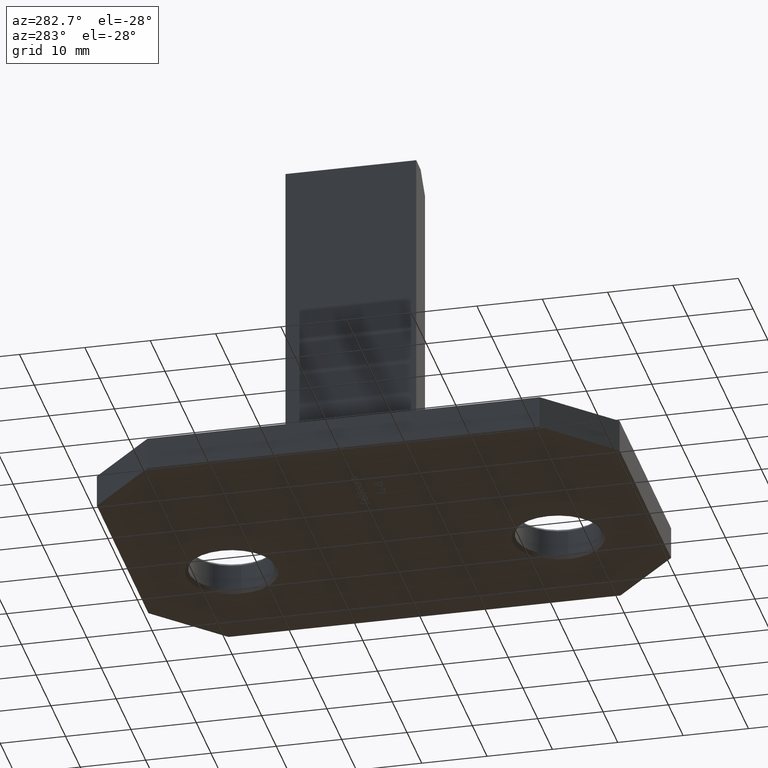
[diagram: clean part render]
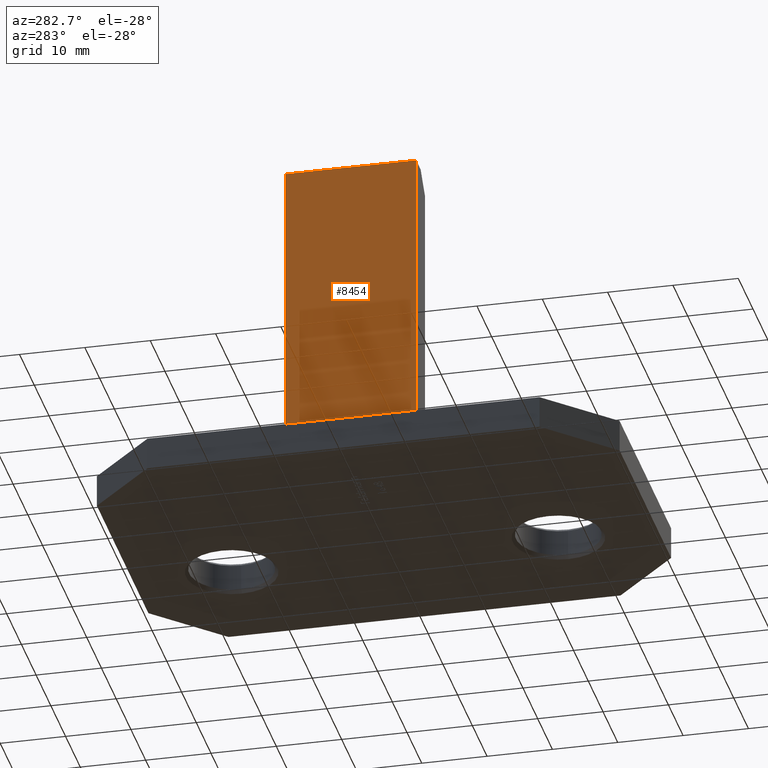
[diagram: same view with one face highlighted and labeled with its STEP entity id]
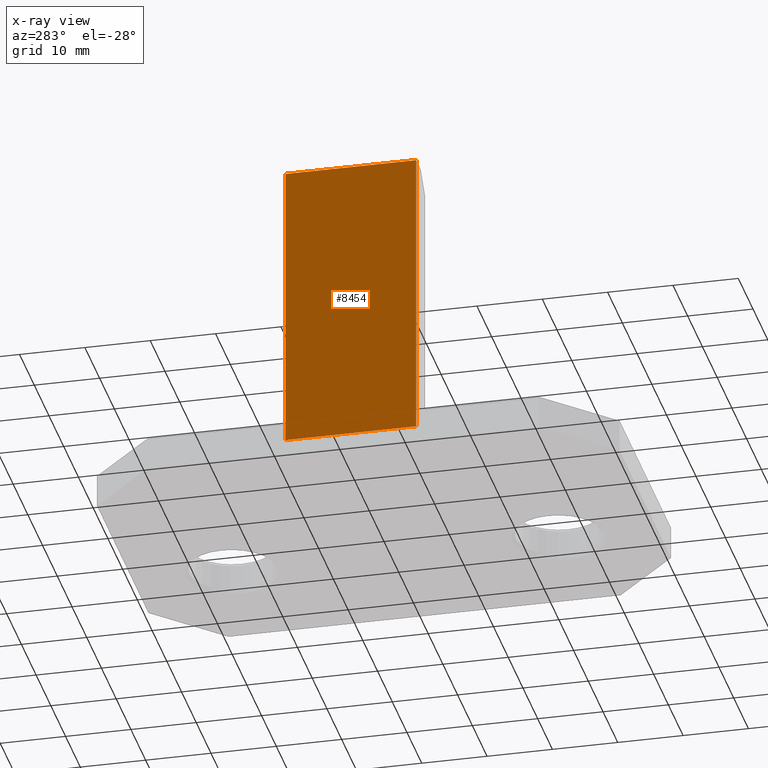
[diagram: x-ray of the same camera — body ghosted, the highlighted face saturated]
A machine part, auxiliary view. The second image highlights one B-rep face of the part: STEP entity #8454.
The next image is the same camera in x-ray: the body ghosted, the highlighted face saturated — about 0% of this face is hidden behind the body in this view.
In plain terms, the highlighted planar face has unit normal (1, 0, -0).
Its self-contained STEP definition (entity closure, byte-faithful):
#239 = VECTOR ( 'NONE', #6320, 1000.000000000000000 ) ;
#604 = EDGE_CURVE ( 'NONE', #8017, #5444, #8525, .T. ) ;
#799 = VERTEX_POINT ( 'NONE', #8672 ) ;
#975 = DIRECTION ( 'NONE',  ( 1.000000000000000000, 3.469446951953615200E-016, -0.0000000000000000000 ) ) ;
#1115 = CARTESIAN_POINT ( 'NONE',  ( -22.50000000000001100, 9.999999999999989300, 5.000000000000000000 ) ) ;
#1546 = VECTOR ( 'NONE', #4017, 1000.000000000000000 ) ;
#1576 = EDGE_CURVE ( 'NONE', #8017, #5506, #3545, .T. ) ;
#2229 = LINE ( 'NONE', #1115, #239 ) ;
#2486 = CARTESIAN_POINT ( 'NONE',  ( -22.50000000000001100, 9.999999999999989300, 5.000000000000000000 ) ) ;
#3054 = ORIENTED_EDGE ( 'NONE', *, *, #1576, .T. ) ;
#3486 = CARTESIAN_POINT ( 'NONE',  ( -22.50000000000000400, -10.00000000000001100, 49.99999999999999300 ) ) ;
#3545 = LINE ( 'NONE', #4043, #1546 ) ;
#3571 = ORIENTED_EDGE ( 'NONE', *, *, #8601, .T. ) ;
#3626 = ORIENTED_EDGE ( 'NONE', *, *, #7328, .F. ) ;
#4017 = DIRECTION ( 'NONE',  ( -0.0000000000000000000, -0.0000000000000000000, -1.000000000000000000 ) ) ;
#4043 = CARTESIAN_POINT ( 'NONE',  ( -22.50000000000001100, 9.999999999999989300, 49.99999999999999300 ) ) ;
#4498 = VECTOR ( 'NONE', #6677, 1000.000000000000000 ) ;
#4574 = EDGE_LOOP ( 'NONE', ( #3571, #3626, #6811, #3054 ) ) ;
#5417 = CARTESIAN_POINT ( 'NONE',  ( -22.50000000000000400, -10.00000000000001100, 49.99999999999999300 ) ) ;
#5433 = PLANE ( 'NONE',  #8959 ) ;
#5444 = VERTEX_POINT ( 'NONE', #5417 ) ;
#5506 = VERTEX_POINT ( 'NONE', #2486 ) ;
#5922 = CARTESIAN_POINT ( 'NONE',  ( -22.50000000000001100, 9.999999999999989300, 49.99999999999999300 ) ) ;
#6146 = CARTESIAN_POINT ( 'NONE',  ( -22.50000000000001100, 9.999999999999989300, 49.99999999999999300 ) ) ;
#6182 = DIRECTION ( 'NONE',  ( -3.469446951953615200E-016, 1.000000000000000000, 0.0000000000000000000 ) ) ;
#6228 = CARTESIAN_POINT ( 'NONE',  ( -22.50000000000001100, 9.999999999999989300, 49.99999999999999300 ) ) ;
#6320 = DIRECTION ( 'NONE',  ( 3.469446951953614200E-016, -1.000000000000000000, 0.0000000000000000000 ) ) ;
#6676 = FACE_OUTER_BOUND ( 'NONE', #4574, .T. ) ;
#6677 = DIRECTION ( 'NONE',  ( 3.469446951953614200E-016, -1.000000000000000000, 0.0000000000000000000 ) ) ;
#6811 = ORIENTED_EDGE ( 'NONE', *, *, #604, .F. ) ;
#7328 = EDGE_CURVE ( 'NONE', #5444, #799, #8623, .T. ) ;
#8017 = VERTEX_POINT ( 'NONE', #6228 ) ;
#8454 = ADVANCED_FACE ( 'NONE', ( #6676 ), #5433, .F. ) ;
#8525 = LINE ( 'NONE', #5922, #4498 ) ;
#8601 = EDGE_CURVE ( 'NONE', #5506, #799, #2229, .T. ) ;
#8623 = LINE ( 'NONE', #3486, #9106 ) ;
#8672 = CARTESIAN_POINT ( 'NONE',  ( -22.50000000000000400, -10.00000000000001100, 5.000000000000000000 ) ) ;
#8796 = DIRECTION ( 'NONE',  ( -0.0000000000000000000, -0.0000000000000000000, -1.000000000000000000 ) ) ;
#8959 = AXIS2_PLACEMENT_3D ( 'NONE', #6146, #975, #6182 ) ;
#9106 = VECTOR ( 'NONE', #8796, 1000.000000000000000 ) ;